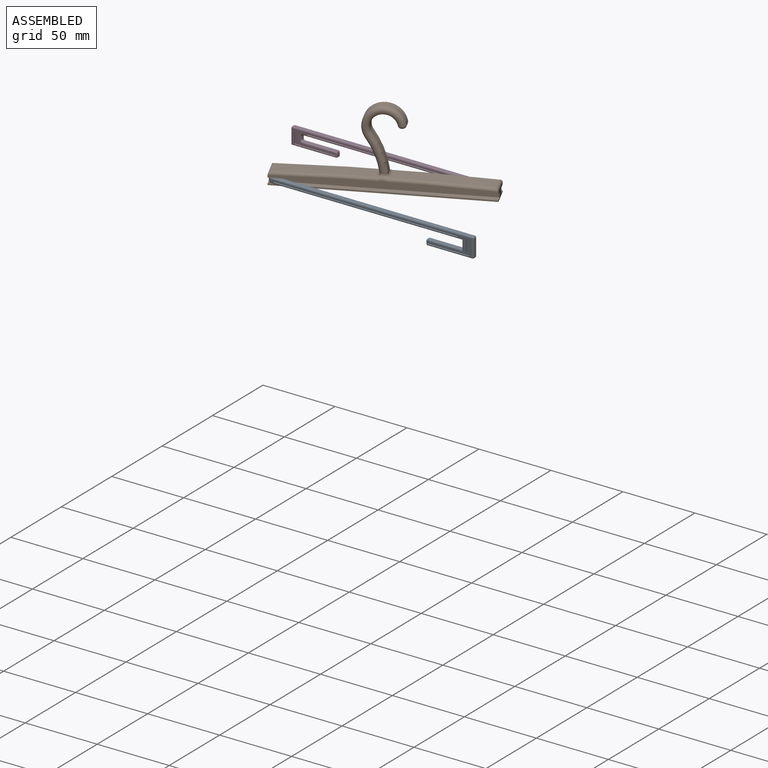
[diagram: assembled view]
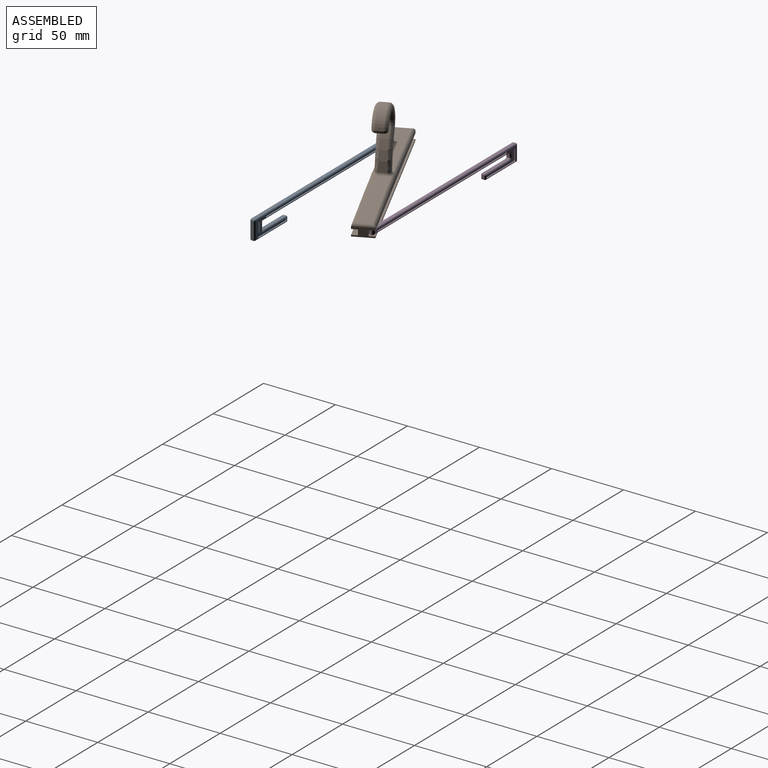
[diagram: assembled view, second angle]
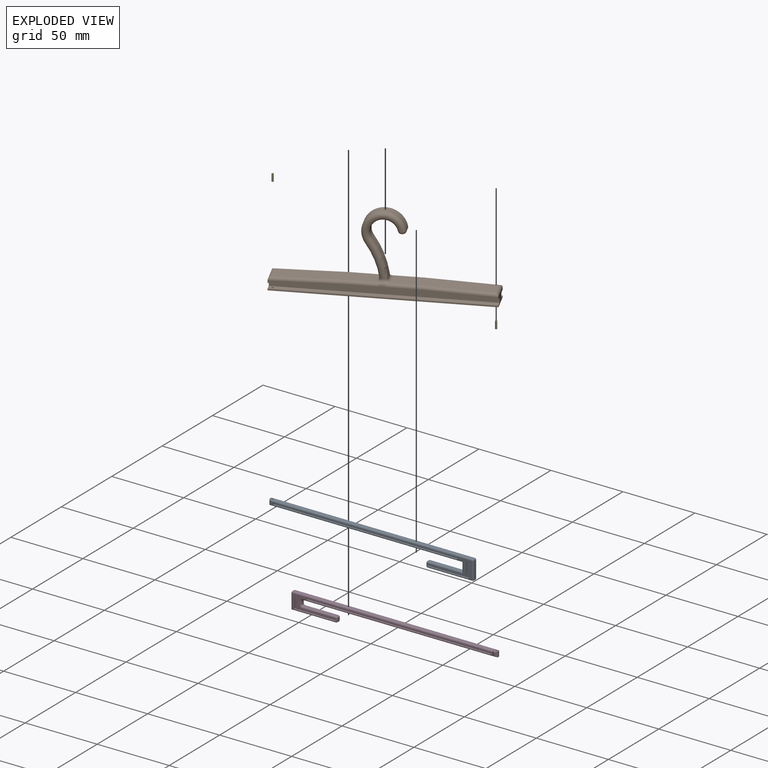
[diagram: exploded view]
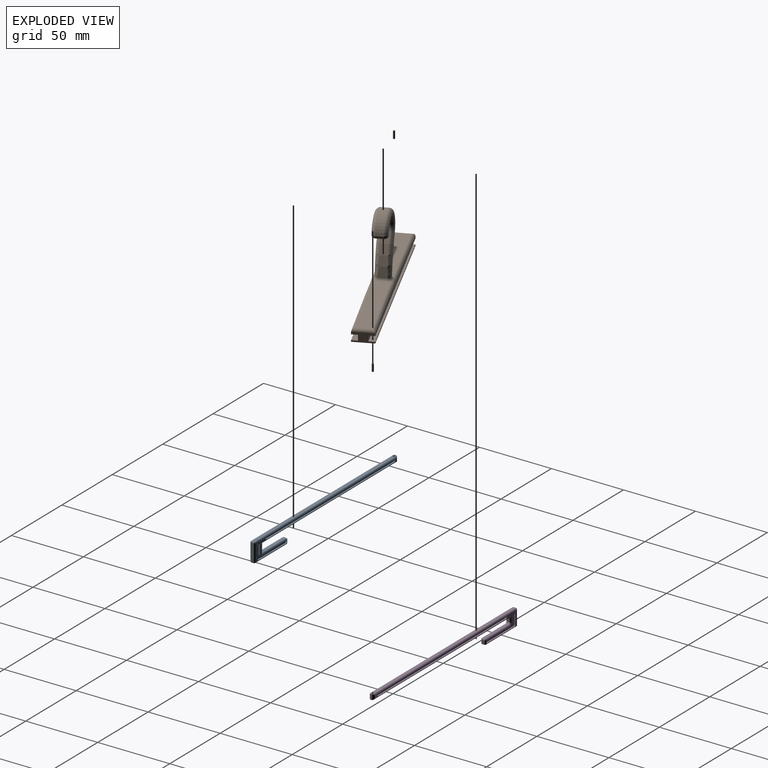
[diagram: exploded view, second angle]
ASSEMBLY  parts=5 mates=4
PART A: 87 faces, bbox 142.3x3.5x13.7 mm
  f0: plane 0.6x0.6mm, normal (0,-1,0), area 0.1mm2, adj f54,f75,f76
  f1: plane 0.6x0.6mm, normal (0,-1,0), area 0.1mm2, adj f49,f69,f76
  f2: plane 11.69x10.5mm, normal (0,-1,0), area 53.3mm2, adj f19,f25,f26,f44,f45,f46,f47,f50
  f3: plane 0.6x0.6mm, normal (0,1,0), area 0.1mm2, adj f56,f82,f86
  f4: plane 0.6x0.6mm, normal (0,1,0), area 0.1mm2, adj f55,f78,f82
  f5: plane 1.69x1.5mm, normal (0,1,0), area 1.8mm2, adj f10,f16,f29,f30,f65,f83
  f6: plane 1.69x1mm, normal (0,-1,0), area 1.7mm2, adj f9,f21,f61,f68
  f7: plane 6x1.5mm, normal (-1,0,0), area 9mm2, adj f8,f33,f72,f85
  f8: plane 134.35x1.5mm, normal (0,0,-1), area 199.9mm2, adj f7,f23,f24,f68,f83
  f9: plane 2.58x0.1mm, normal (-1,0,0), area 0.2mm2, adj f6,f23,f61,f68
  f10: plane 2.58x0.1mm, normal (-1,0,0), area 0.2mm2, adj f5,f23,f65,f83
  f11: plane 11.69x10.5mm, normal (0,1,0), area 53.3mm2, adj f14,f27,f28,f37,f38,f39,f40,f57
  f12: plane 141.35x1.5mm, normal (0,0,1), area 210.4mm2, adj f23,f24,f61,f64,f65
  f13: plane 127x1mm, normal (0,0,-1), area 127mm2, adj f17,f27,f30,f65
  f14: plane 1x0.69mm, normal (-1,0,0), area 0.7mm2, adj f11,f17,f27,f28
  f15: plane 127x1mm, normal (0,0,1), area 127mm2, adj f17,f28,f29,f83
  f16: plane 1x0.69mm, normal (1,0,0), area 0.7mm2, adj f5,f17,f29,f30
  f17: plane 128x1.69mm, normal (0,1,0), area 215.9mm2, adj f13,f14,f15,f16,f27,f28,f29,f30
  f18: plane 127.5x1mm, normal (0,0,1), area 127.5mm2, adj f21,f22,f25,f68
  f19: plane 1x0.69mm, normal (-1,0,0), area 0.7mm2, adj f2,f22,f25,f26
  f20: plane 127.5x1mm, normal (0,0,-1), area 127.5mm2, adj f21,f22,f26,f61
  f21: plane 1.69x1mm, normal (1,0,0), area 1.7mm2, adj f6,f18,f20,f22
  f22: plane 128x1.69mm, normal (0,-1,0), area 216mm2, adj f18,f19,f20,f21,f25,f26
  f23: cylinder r=1.75mm len=3.69mm, axis (0,0,-1), area 21.9mm2, adj f8,f9,f10,f12,f61,f65,f68,f83
  f24: cylinder r=0.7mm len=3.69mm, axis (0,0,1), area 16.2mm2, adj f8,f12
  f25: cylinder r=0.5mm len=1mm, axis (0,1,0), area 0.8mm2, adj f2,f18,f19,f22
  f26: cylinder r=0.5mm len=1mm, axis (0,1,0), area 0.8mm2, adj f2,f19,f20,f22
  f27: cylinder r=0.5mm len=1mm, axis (0,-1,0), area 0.8mm2, adj f11,f13,f14,f17
  f28: cylinder r=0.5mm len=1mm, axis (0,-1,0), area 0.8mm2, adj f11,f14,f15,f17
  f29: cylinder r=0.5mm len=1mm, axis (0,-1,0), area 0.8mm2, adj f5,f15,f16,f17
  f30: cylinder r=0.5mm len=1mm, axis (0,-1,0), area 0.8mm2, adj f5,f13,f16,f17
  f31: plane 11.69x1.5mm, normal (1,0,0), area 17.5mm2, adj f63,f64,f70,f71
  f32: plane 31x1.5mm, normal (0,0,-1), area 46.5mm2, adj f69,f70,f77,f78
  f33: plane 24x1.5mm, normal (0,0,1), area 36mm2, adj f7,f75,f81,f86
  f34: plane 2x1.5mm, normal (-1,0,0), area 3mm2, adj f76,f77,f81,f82
  f35: plane 27.74x1mm, normal (0,0,1), area 27.7mm2, adj f41,f55,f60,f78
  f36: plane 1x0.8mm, normal (1,0,0), area 0.8mm2, adj f41,f55,f56,f82
  f37: plane 25.74x1mm, normal (0,0,-1), area 25.7mm2, adj f11,f41,f56,f57,f86
  f38: plane 6.8x1mm, normal (1,0,0), area 6.8mm2, adj f11,f41,f57,f58
  f39: plane 1x0.8mm, normal (0,0,-1), area 0.8mm2, adj f11,f41,f58,f59
  f40: plane 8.8x1mm, normal (-1,0,0), area 8.8mm2, adj f11,f41,f59,f60
  f41: plane 28.94x10mm, normal (0,1,0), area 73.6mm2, adj f35,f36,f37,f38,f39,f40,f55,f56
  f42: plane 1x0.8mm, normal (1,0,0), area 0.8mm2, adj f48,f49,f54,f76
  f43: plane 27.74x1mm, normal (0,0,1), area 27.7mm2, adj f48,f49,f50,f69
  f44: plane 8.8x1mm, normal (-1,0,0), area 8.8mm2, adj f2,f48,f50,f51
  f45: plane 1x0.8mm, normal (0,0,-1), area 0.8mm2, adj f2,f48,f51,f52
  f46: plane 6.8x1mm, normal (1,0,0), area 6.8mm2, adj f2,f48,f52,f53
  f47: plane 25.74x1mm, normal (0,0,-1), area 25.7mm2, adj f2,f48,f53,f54,f75
  f48: plane 28.94x10mm, normal (0,-1,0), area 73.6mm2, adj f42,f43,f44,f45,f46,f47,f49,f50
  f49: cylinder r=0.6mm len=1mm, axis (0,1,0), area 0.9mm2, adj f1,f42,f43,f48
  f50: cylinder r=0.6mm len=1mm, axis (0,1,0), area 0.9mm2, adj f2,f43,f44,f48
  f51: cylinder r=0.6mm len=1mm, axis (0,1,0), area 0.9mm2, adj f2,f44,f45,f48
  f52: cylinder r=0.6mm len=1mm, axis (0,1,0), area 0.9mm2, adj f2,f45,f46,f48
  f53: cylinder r=0.6mm len=1mm, axis (0,-1,0), area 0.9mm2, adj f2,f46,f47,f48
  f54: cylinder r=0.6mm len=1mm, axis (0,1,0), area 0.9mm2, adj f0,f42,f47,f48
  f55: cylinder r=0.6mm len=1mm, axis (0,-1,0), area 0.9mm2, adj f4,f35,f36,f41
  f56: cylinder r=0.6mm len=1mm, axis (0,-1,0), area 0.9mm2, adj f3,f36,f37,f41
  f57: cylinder r=0.6mm len=1mm, axis (0,1,0), area 0.9mm2, adj f11,f37,f38,f41
  f58: cylinder r=0.6mm len=1mm, axis (0,-1,0), area 0.9mm2, adj f11,f38,f39,f41
  f59: cylinder r=0.6mm len=1mm, axis (0,-1,0), area 0.9mm2, adj f11,f39,f40,f41
  f60: cylinder r=0.6mm len=1mm, axis (0,-1,0), area 0.9mm2, adj f11,f35,f40,f41
  f61: cylinder r=1mm len=141.18mm, axis (1,0,0), area 220.6mm2, adj f2,f6,f9,f12,f20,f23,f62
  f62: sphere r=1mm, area 1.6mm2, adj f61,f63,f64
  f63: cylinder r=1mm len=11.69mm, axis (0,0,-1), area 18.4mm2, adj f2,f31,f62,f66
  f64: cylinder r=1mm len=1.5mm, axis (0,-1,0), area 2.4mm2, adj f12,f31,f62,f67
  f65: cylinder r=1mm len=141.18mm, axis (1,0,0), area 220.6mm2, adj f5,f10,f11,f12,f13,f23,f67
  f66: sphere r=1mm, area 1.6mm2, adj f63,f69,f70
  f67: sphere r=1mm, area 1mm2, adj f64,f65,f71
  f68: cylinder r=1mm len=135.18mm, axis (-1,0,0), area 210.3mm2, adj f2,f6,f8,f9,f18,f23,f72
  f69: cylinder r=1mm len=31mm, axis (-1,0,0), area 48.7mm2, adj f1,f2,f32,f43,f66,f73
  f70: cylinder r=1mm len=1.5mm, axis (0,1,0), area 2.4mm2, adj f31,f32,f66,f74
  f71: cylinder r=1mm len=11.69mm, axis (0,0,1), area 18.4mm2, adj f11,f31,f67,f74
  f72: cylinder r=1mm len=8mm, axis (0,0,-1), area 11mm2, adj f2,f7,f68,f75
  f73: sphere r=1mm, area 1.6mm2, adj f69,f76,f77
  f74: sphere r=1mm, area 1mm2, adj f70,f71,f78
  f75: cylinder r=1mm len=25mm, axis (-1,0,0), area 38.5mm2, adj f0,f33,f47,f72,f79
  f76: cylinder r=1mm len=2mm, axis (0,0,-1), area 3.1mm2, adj f0,f1,f34,f42,f73,f79
  f77: cylinder r=1mm len=1.5mm, axis (0,-1,0), area 2.4mm2, adj f32,f34,f73,f80
  f78: cylinder r=1mm len=31mm, axis (-1,0,0), area 48.7mm2, adj f4,f11,f32,f35,f74,f80
  f79: sphere r=1mm, area 1.6mm2, adj f75,f76,f81
  f80: sphere r=1mm, area 2.1mm2, adj f77,f78,f82
  f81: cylinder r=1mm len=1.5mm, axis (0,-1,0), area 2.4mm2, adj f33,f34,f79,f84
  f82: cylinder r=1mm len=2mm, axis (0,0,-1), area 3.1mm2, adj f3,f4,f34,f36,f80,f84
  f83: cylinder r=1mm len=135.18mm, axis (-1,0,0), area 210.4mm2, adj f5,f8,f10,f11,f15,f23,f85
  f84: sphere r=1mm, area 2.1mm2, adj f81,f82,f86
  f85: cylinder r=1mm len=8mm, axis (0,0,-1), area 11mm2, adj f7,f11,f83,f86
  f86: cylinder r=1mm len=25mm, axis (-1,0,0), area 38.5mm2, adj f3,f33,f37,f84,f85
PART B: 54 faces, bbox 133.5x14x54 mm
  f0: plane 17.68x10.01mm, normal (0,0,1), area 170.3mm2, adj f28,f35,f36,f37,f39,f44
  f1: plane 6x1.02mm, normal (0,0,-1), area 5.9mm2, adj f50,f51,f52,f53
  f2: cylinder r=8.17mm len=16.18mm, axis (0,1,0), area 144.9mm2, adj f3,f30,f32,f51
  f3: cylinder r=54.11mm len=23.99mm, axis (0,1,0), area 129.6mm2, adj f2,f31,f33,f34
  f4: cylinder r=49.11mm len=20.6mm, axis (0,1,0), area 111.8mm2, adj f5,f31,f33,f37
  f5: cylinder r=13.17mm len=26.12mm, axis (0,1,0), area 234.8mm2, adj f4,f30,f32,f52
  f6: plane 133.35x3.23mm, normal (0,-1,0), area 307mm2, adj f8,f11,f15,f38,f39,f41,f43,f45
  f7: plane 133.35x3.23mm, normal (0,1,0), area 307mm2, adj f8,f11,f18,f42,f44,f46,f48,f49
  f8: plane 14x6.24mm, normal (-1,0,0), area 57.9mm2, adj f6,f7,f10,f12,f13,f14,f15,f16
  f9: plane 18.15x10.01mm, normal (0,0,1), area 175mm2, adj f29,f34,f35,f36,f43,f48
  f10: plane 133.35x14mm, normal (0,0,-1), area 1866.9mm2, adj f8,f11,f12,f13
  f11: plane 14x6.24mm, normal (1,0,0), area 57.9mm2, adj f6,f7,f10,f12,f13,f14,f15,f16
  f12: plane 133.35x1mm, normal (0,-1,0), area 133.3mm2, adj f8,f10,f11,f14
  f13: plane 133.35x1mm, normal (0,1,0), area 133.3mm2, adj f8,f10,f11,f17
  f14: plane 133.35x4mm, normal (0,0,1), area 531.9mm2, adj f8,f11,f12,f16,f26
  f15: plane 133.35x4mm, normal (0,0,-1), area 531.9mm2, adj f6,f8,f11,f16,f24
  f16: plane 133.35x3.69mm, normal (0,-1,0), area 491.8mm2, adj f8,f11,f14,f15
  f17: plane 133.35x4mm, normal (0,0,1), area 531.9mm2, adj f8,f11,f13,f19,f22
  f18: plane 133.35x4mm, normal (0,0,-1), area 531.9mm2, adj f7,f8,f11,f19,f20
  f19: plane 133.35x3.69mm, normal (0,1,0), area 491.8mm2, adj f8,f11,f17,f18
  f20: cylinder r=0.7mm len=1.4mm, axis (0,0,-1), area 2.6mm2, adj f18,f21
  f21: plane 1.4x1.4mm, normal (0,0,-1), area 1.5mm2, adj f20
  f22: cylinder r=0.7mm len=1.4mm, axis (0,0,1), area 3.6mm2, adj f17,f23
  f23: plane 1.4x1.4mm, normal (0,0,1), area 1.5mm2, adj f22
  f24: cylinder r=0.7mm len=1.4mm, axis (0,0,-1), area 2.6mm2, adj f15,f25
  f25: plane 1.4x1.4mm, normal (0,0,-1), area 1.5mm2, adj f24
  f26: cylinder r=0.7mm len=1.4mm, axis (0,0,1), area 3.6mm2, adj f14,f27
  f27: plane 1.4x1.4mm, normal (0,0,1), area 1.5mm2, adj f26
  f28: plane 43.04x10mm, normal (0.03,0,1), area 430.6mm2, adj f0,f38,f40,f42
  f29: plane 43.04x10mm, normal (-0.03,0,1), area 430.6mm2, adj f9,f45,f47,f49
  f30: torus R=10.67mm, axis (0,-1,0), area 298.1mm2, adj f2,f5,f31,f50
  f31: torus R=51.61mm, axis (0,-1,0), area 189.7mm2, adj f3,f4,f30,f36
  f32: torus R=10.67mm, axis (0,-1,0), area 298.1mm2, adj f2,f5,f33,f53
  f33: torus R=51.61mm, axis (0,-1,0), area 189.7mm2, adj f3,f4,f32,f35
  f34: cylinder r=2mm len=5mm, axis (0,1,0), area 14.5mm2, adj f3,f9,f35,f36
  f35: bspline ~9.08x5.51mm, area 32.2mm2, adj f0,f9,f33,f34,f37,f41
  f36: bspline ~9.08x4.76mm, area 32.2mm2, adj f0,f9,f31,f34,f37,f46
  f37: cylinder r=2mm len=5mm, axis (0,1,0), area 17.2mm2, adj f0,f4,f35,f36
  f38: cylinder r=2mm len=45.09mm, axis (-1,0,0.03), area 139.2mm2, adj f6,f11,f28,f39,f40
  f39: cylinder r=2mm len=17.67mm, axis (-1,0,0), area 55.5mm2, adj f0,f6,f38,f41
  f40: cylinder r=2mm len=14mm, axis (0,1,0), area 37.1mm2, adj f11,f28,f38,f42
  f41: bspline ~8.48x2.28mm, area 19.1mm2, adj f6,f35,f39,f43
  f42: cylinder r=2mm len=45.09mm, axis (1,0,-0.03), area 139.2mm2, adj f7,f11,f28,f40,f44
  f43: cylinder r=2mm len=18.15mm, axis (-1,0,0), area 57mm2, adj f6,f9,f41,f45
  f44: cylinder r=2mm len=17.67mm, axis (-1,0,0), area 55.5mm2, adj f0,f7,f42,f46
  f45: cylinder r=2mm len=45.09mm, axis (-1,0,-0.03), area 139.2mm2, adj f6,f8,f29,f43,f47
  f46: bspline ~8.48x2.28mm, area 19.1mm2, adj f7,f36,f44,f48
  f47: cylinder r=2mm len=14mm, axis (0,1,0), area 37.1mm2, adj f8,f29,f45,f49
  f48: cylinder r=2mm len=18.15mm, axis (-1,0,0), area 57mm2, adj f7,f9,f46,f49
  f49: cylinder r=2mm len=45.09mm, axis (1,0,0.03), area 139.2mm2, adj f7,f8,f29,f47,f48
  f50: bspline ~5.38x3.18mm, area 17.5mm2, adj f1,f30,f51,f52
  f51: cylinder r=2mm len=5mm, axis (0,1,0), area 13.7mm2, adj f1,f2,f50,f53
  f52: cylinder r=2mm len=5mm, axis (0,1,0), area 17.5mm2, adj f1,f5,f50,f53
  f53: bspline ~5.38x3.18mm, area 17.5mm2, adj f1,f32,f51,f52
PART C: 3 faces, bbox 1.3x1.3x5 mm
  f0: cylinder r=0.65mm len=5mm, axis (0,0,1), area 20.4mm2, adj f1,f2
  f1: plane 1.3x1.3mm, normal (0,0,-1), area 1.3mm2, adj f0
  f2: plane 1.3x1.3mm, normal (0,0,1), area 1.3mm2, adj f0
PART D: 86 faces, bbox 143.1x3.4x11.7 mm
  f0: plane 1.69x1mm, normal (0,1,0), area 1.7mm2, adj f8,f20,f50,f69
  f1: plane 1.69x1.5mm, normal (0,-1,0), area 1.8mm2, adj f9,f15,f26,f27,f54,f78
  f2: plane 10.5x9.69mm, normal (0,-1,0), area 39.4mm2, adj f13,f24,f25,f34,f35,f36,f37,f47
  f3: plane 10.5x9.69mm, normal (0,1,0), area 39.4mm2, adj f18,f22,f23,f39,f40,f41,f42,f50
  f4: plane 2x1.44mm, normal (1,0,0), area 2.9mm2, adj f70,f71,f75,f76
  f5: plane 135.1x1.44mm, normal (0,0,-1), area 192.4mm2, adj f6,f7,f69,f75,f78
  f6: cylinder r=1.72mm len=3.69mm, axis (0,0,-1), area 25.9mm2, adj f5,f8,f9,f11,f50,f54,f69,f78
  f7: cylinder r=0.7mm len=3.69mm, axis (0,0,1), area 16.2mm2, adj f5,f11
  f8: plane 3.59x0.69mm, normal (1,0,0), area 2.1mm2, adj f0,f6,f50,f69
  f9: plane 3.59x0.69mm, normal (1,0,0), area 2.1mm2, adj f1,f6,f54,f78
  f10: plane 0.5x0.5mm, normal (0,-1,0), area 0.1mm2, adj f46,f61,f66
  f11: plane 142.1x1.44mm, normal (0,0,1), area 202.4mm2, adj f6,f7,f50,f53,f54
  f12: plane 127x1mm, normal (0,0,-1), area 127mm2, adj f16,f24,f27,f54
  f13: plane 1x0.69mm, normal (1,0,0), area 0.7mm2, adj f2,f16,f24,f25
  f14: plane 127x1mm, normal (0,0,1), area 127mm2, adj f16,f25,f26,f78
  f15: plane 1x0.69mm, normal (-1,0,0), area 0.7mm2, adj f1,f16,f26,f27
  f16: plane 128x1.69mm, normal (0,-1,0), area 215.9mm2, adj f12,f13,f14,f15,f24,f25,f26,f27
  f17: plane 127.5x1mm, normal (0,0,1), area 127.5mm2, adj f20,f21,f22,f69
  f18: plane 1x0.69mm, normal (1,0,0), area 0.7mm2, adj f3,f21,f22,f23
  f19: plane 127.5x1mm, normal (0,0,-1), area 127.5mm2, adj f20,f21,f23,f50
  f20: plane 1.69x1mm, normal (-1,0,0), area 1.7mm2, adj f0,f17,f19,f21
  f21: plane 128x1.69mm, normal (0,1,0), area 216mm2, adj f17,f18,f19,f20,f22,f23
  f22: cylinder r=0.5mm len=1mm, axis (0,-1,0), area 0.8mm2, adj f3,f17,f18,f21
  f23: cylinder r=0.5mm len=1mm, axis (0,-1,0), area 0.8mm2, adj f3,f18,f19,f21
  f24: cylinder r=0.5mm len=1mm, axis (0,1,0), area 0.8mm2, adj f2,f12,f13,f16
  f25: cylinder r=0.5mm len=1mm, axis (0,1,0), area 0.8mm2, adj f2,f13,f14,f16
  f26: cylinder r=0.5mm len=1mm, axis (0,1,0), area 0.8mm2, adj f1,f14,f15,f16
  f27: cylinder r=0.5mm len=1mm, axis (0,1,0), area 0.8mm2, adj f1,f12,f15,f16
  f28: plane 10.69x1.44mm, normal (-1,0,0), area 15.3mm2, adj f29,f52,f53,f58
  f29: plane 31x1.44mm, normal (0,0,-1), area 44.5mm2, adj f28,f55,f60,f61
  f30: plane 23x1.44mm, normal (0,0,1), area 33mm2, adj f64,f65,f71,f72
  f31: plane 2x1.44mm, normal (1,0,0), area 2.9mm2, adj f59,f60,f65,f66
  f32: plane 27.71x1mm, normal (0,0,1), area 27.7mm2, adj f38,f46,f49,f61
  f33: plane 1.5x1mm, normal (-1,0,0), area 1.5mm2, adj f34,f38,f46,f66
  f34: plane 26.11x1mm, normal (0,0,-1), area 26.1mm2, adj f2,f33,f38,f72,f85
  f35: plane 4.9x1mm, normal (-1,0,0), area 4.9mm2, adj f2,f38,f47,f85
  f36: plane 1x1mm, normal (0,0,-1), area 1mm2, adj f2,f38,f47,f48
  f37: plane 7x1mm, normal (1,0,0), area 7mm2, adj f2,f38,f48,f49
  f38: plane 28.71x8mm, normal (0,-1,0), area 69.3mm2, adj f32,f33,f34,f35,f36,f37,f46,f47
  f39: plane 6.8x1mm, normal (1,0,0), area 6.8mm2, adj f3,f45,f79,f84
  f40: plane 1x0.8mm, normal (0,0,-1), area 0.8mm2, adj f3,f45,f79,f80
  f41: plane 4.8x1mm, normal (-1,0,0), area 4.8mm2, adj f3,f45,f80,f81
  f42: plane 25.51x1mm, normal (0,0,-1), area 25.5mm2, adj f3,f45,f64,f81,f82
  f43: plane 1x0.8mm, normal (-1,0,0), area 0.8mm2, adj f45,f59,f82,f83
  f44: plane 27.51x1mm, normal (0,0,1), area 27.5mm2, adj f45,f55,f83,f84
  f45: plane 28.71x8mm, normal (0,1,0), area 69.1mm2, adj f39,f40,f41,f42,f43,f44,f79,f80
  f46: cylinder r=0.5mm len=1mm, axis (0,1,0), area 0.8mm2, adj f10,f32,f33,f38
  f47: cylinder r=0.5mm len=1mm, axis (0,1,0), area 0.8mm2, adj f2,f35,f36,f38
  f48: cylinder r=0.5mm len=1mm, axis (0,1,0), area 0.8mm2, adj f2,f36,f37,f38
  f49: cylinder r=0.5mm len=1mm, axis (0,1,0), area 0.8mm2, adj f2,f32,f37,f38
  f50: cylinder r=1mm len=141.94mm, axis (-1,0,0), area 221.1mm2, adj f0,f3,f6,f8,f11,f19,f51
  f51: sphere r=1mm, area 2.1mm2, adj f50,f52,f53
  f52: cylinder r=1mm len=10.69mm, axis (0,0,-1), area 16mm2, adj f3,f28,f51,f55
  f53: cylinder r=1mm len=1.44mm, axis (0,1,0), area 2.3mm2, adj f11,f28,f51,f56
  f54: cylinder r=1mm len=141.94mm, axis (-1,0,0), area 221.1mm2, adj f1,f2,f6,f9,f11,f12,f56
  f55: cylinder r=1mm len=31mm, axis (1,0,0), area 48.2mm2, adj f3,f29,f44,f52,f57,f59,f83
  f56: sphere r=1mm, area 1.6mm2, adj f53,f54,f58
  f57: sphere r=1mm, area 1mm2, adj f55,f59,f60
  f58: cylinder r=1mm len=10.69mm, axis (0,0,1), area 16mm2, adj f2,f28,f56,f61
  f59: cylinder r=1mm len=2mm, axis (0,0,-1), area 3.2mm2, adj f31,f43,f55,f57,f62,f64,f82,f83
  f60: cylinder r=1mm len=1.44mm, axis (0,1,0), area 2.3mm2, adj f29,f31,f57,f63
  f61: cylinder r=1mm len=31mm, axis (1,0,0), area 47.9mm2, adj f2,f10,f29,f32,f58,f63
  f62: sphere r=1mm, area 1mm2, adj f59,f64,f65
  f63: sphere r=1mm, area 1.6mm2, adj f60,f61,f66
  f64: cylinder r=1mm len=23mm, axis (1,0,0), area 36.2mm2, adj f30,f42,f59,f62,f67,f82
  f65: cylinder r=1mm len=1.44mm, axis (0,1,0), area 2.3mm2, adj f30,f31,f62,f68
  f66: cylinder r=1mm len=2mm, axis (0,0,-1), area 3.1mm2, adj f10,f31,f33,f63,f68
  f67: torus R=2mm, axis (0,-1,0), area 3.4mm2, adj f3,f64,f70,f71
  f68: sphere r=1mm, area 1.6mm2, adj f65,f66,f72
  f69: cylinder r=1mm len=134.94mm, axis (1,0,0), area 210.1mm2, adj f0,f3,f5,f6,f8,f17,f73
  f70: cylinder r=1mm len=2mm, axis (0,0,-1), area 3.1mm2, adj f3,f4,f67,f73
  f71: cylinder r=1mm len=1.44mm, axis (0,-1,0), area 2.3mm2, adj f4,f30,f67,f74
  f72: cylinder r=1mm len=23mm, axis (1,0,0), area 36.1mm2, adj f30,f34,f68,f74
  f73: torus R=2mm, axis (0,-1,0), area 3.4mm2, adj f3,f69,f70,f75
  f74: torus R=2mm, axis (0,1,0), area 3.4mm2, adj f2,f71,f72,f76
  f75: cylinder r=1mm len=1.44mm, axis (0,-1,0), area 2.3mm2, adj f4,f5,f73,f77
  f76: cylinder r=1mm len=2mm, axis (0,0,-1), area 3.1mm2, adj f2,f4,f74,f77
  f77: torus R=2mm, axis (0,1,0), area 3.4mm2, adj f2,f75,f76,f78
  f78: cylinder r=1mm len=134.94mm, axis (1,0,0), area 210.1mm2, adj f1,f2,f5,f6,f9,f14,f77
  f79: cylinder r=0.6mm len=1mm, axis (0,-1,0), area 0.9mm2, adj f3,f39,f40,f45
  f80: cylinder r=0.6mm len=1mm, axis (0,-1,0), area 0.9mm2, adj f3,f40,f41,f45
  f81: cylinder r=0.6mm len=1mm, axis (0,1,0), area 0.9mm2, adj f3,f41,f42,f45
  f82: cylinder r=0.6mm len=1mm, axis (0,-1,0), area 0.9mm2, adj f42,f43,f45,f59,f64
  f83: cylinder r=0.6mm len=1mm, axis (0,-1,0), area 0.9mm2, adj f43,f44,f45,f55,f59
  f84: cylinder r=0.6mm len=1mm, axis (0,-1,0), area 0.9mm2, adj f3,f39,f44,f45
  f85: cylinder r=0.6mm len=1mm, axis (0,-1,0), area 0.9mm2, adj f2,f34,f35,f38
PART E: same geometry as C
PLACE A t=(-243.61,-310.02,-13.68)mm
PLACE B rot(axis=(0,0,-1),154.9deg) t=(-123.86,-273.39,-13.55)mm
PLACE C t=(-132.5,-246.96,-13.76)mm
PLACE D t=(-5.13,-237.05,-13.61)mm
PLACE E t=(-243.61,-310.02,-12.46)mm
MATE revolute D.f6 <-> C.f0  axis (0,0,1) through (-68.54,-241.99,-6.79)mm
MATE revolute C.f0 <-> B.f24  axis (0,0,1) through (-68.54,-241.99,-4.29)mm
MATE cylindrical E.f0 <-> B.f22  axis (0,0,-1) through (-179.65,-305.05,-7.99)mm
MATE cylindrical A.f24 <-> E.f0  axis (0,0,1) through (-179.65,-305.05,-6.86)mm
